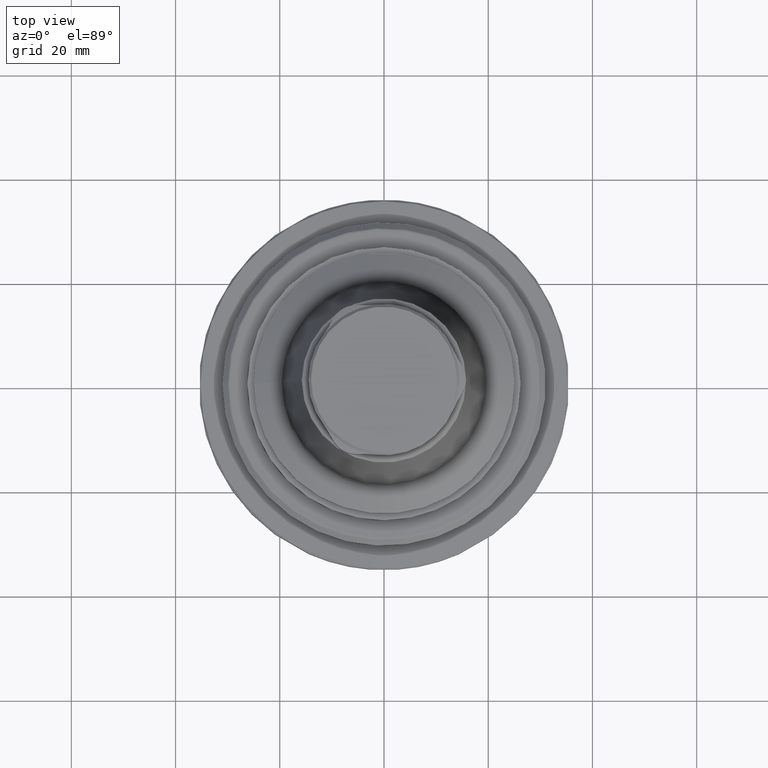
[diagram: clean part render]
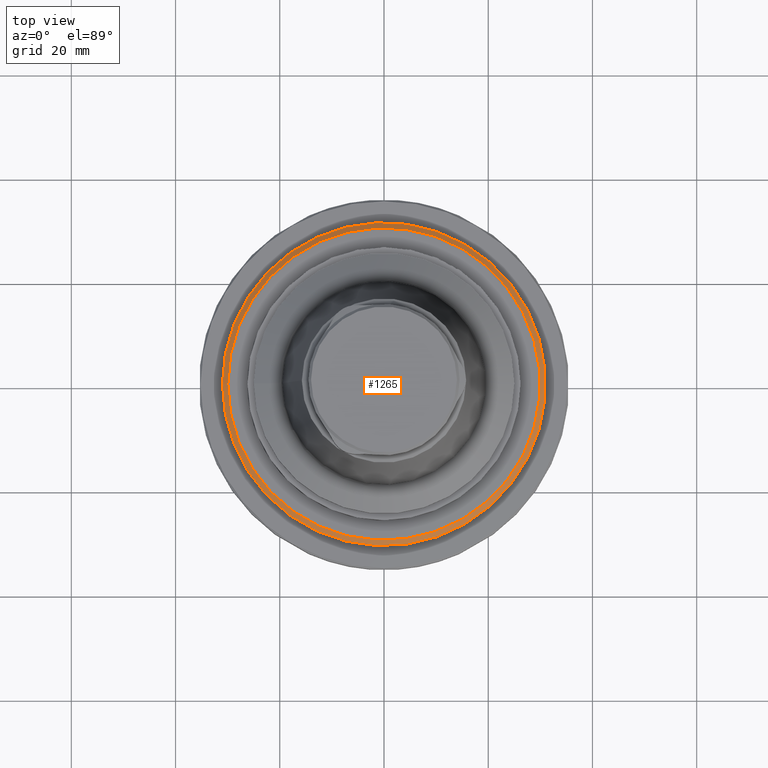
[diagram: same view with one face highlighted and labeled with its STEP entity id]
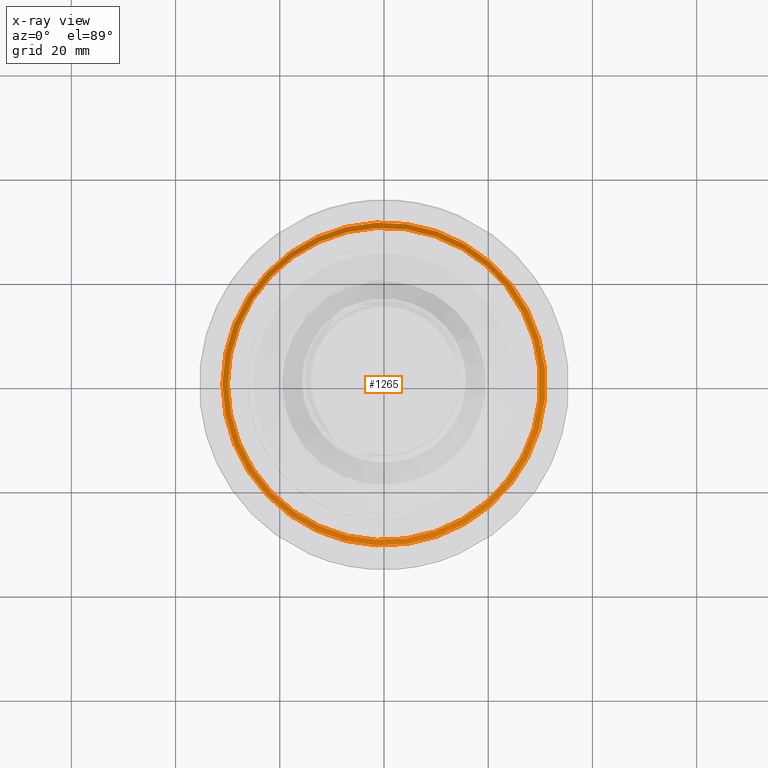
[diagram: x-ray of the same camera — body ghosted, the highlighted face saturated]
A machine part, top view. The second image highlights one B-rep face of the part: STEP entity #1265.
The next image is the same camera in x-ray: the body ghosted, the highlighted face saturated — about 0% of this face is hidden behind the body in this view.
In plain terms, the highlighted conical surface has half-angle 45 deg.
Its self-contained STEP definition (entity closure, byte-faithful):
#47=CONICAL_SURFACE('',#1419,29.9757350979542,0.785398163397448);
#101=CIRCLE('',#1418,31.);
#102=CIRCLE('',#1420,29.9757350979542);
#467=ORIENTED_EDGE('',*,*,#692,.F.);
#468=ORIENTED_EDGE('',*,*,#693,.T.);
#692=EDGE_CURVE('',#829,#829,#101,.T.);
#693=EDGE_CURVE('',#830,#830,#102,.T.);
#829=VERTEX_POINT('',#2214);
#830=VERTEX_POINT('',#2217);
#1011=EDGE_LOOP('',(#467));
#1012=EDGE_LOOP('',(#468));
#1141=FACE_BOUND('',#1011,.T.);
#1142=FACE_BOUND('',#1012,.T.);
#1265=ADVANCED_FACE('',(#1141,#1142),#47,.T.);
#1418=AXIS2_PLACEMENT_3D('',#2213,#1726,#1727);
#1419=AXIS2_PLACEMENT_3D('',#2215,#1728,#1729);
#1420=AXIS2_PLACEMENT_3D('',#2216,#1730,#1731);
#1726=DIRECTION('',(0.,1.04225259501902E-17,-1.));
#1727=DIRECTION('',(-1.,0.,0.));
#1728=DIRECTION('',(0.,1.04225259501902E-17,-1.));
#1729=DIRECTION('',(-1.,0.,0.));
#1730=DIRECTION('',(0.,1.04225259501902E-17,-1.));
#1731=DIRECTION('',(-1.,0.,0.));
#2213=CARTESIAN_POINT('',(5.0731267217448E-15,4.37746089907988E-17,4.30111069989303));
#2214=CARTESIAN_POINT('',(-31.,4.37746089907988E-17,4.30111069989303));
#2215=CARTESIAN_POINT('',(5.0731267217448E-15,3.30991814693569E-17,5.32537560193888));
#2216=CARTESIAN_POINT('',(5.0731267217448E-15,3.30991814693569E-17,5.32537560193888));
#2217=CARTESIAN_POINT('',(-29.9757350979542,3.30991814693569E-17,5.32537560193888));